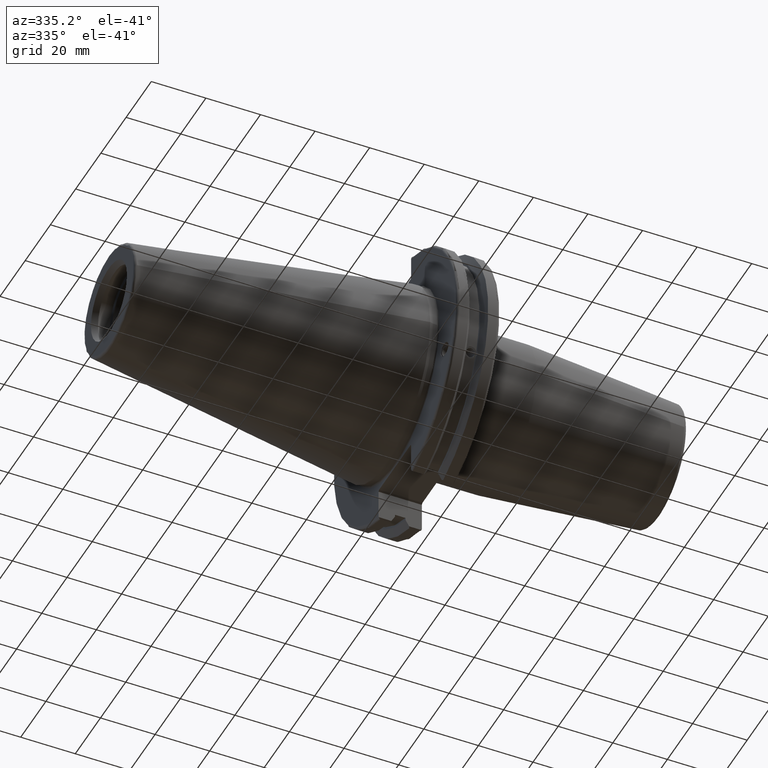
[diagram: clean part render]
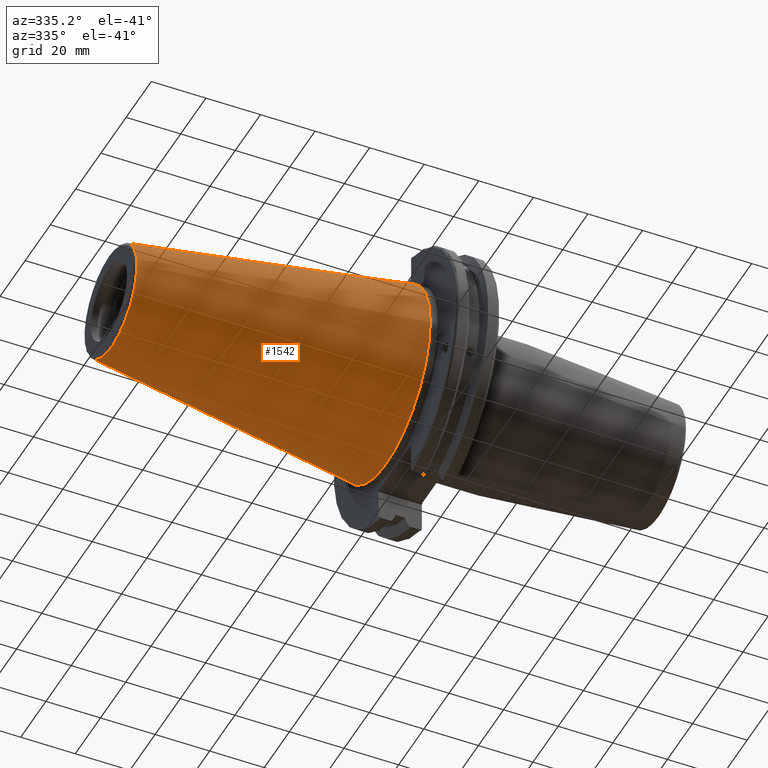
[diagram: same view with one face highlighted and labeled with its STEP entity id]
A machine part, auxiliary view. The second image highlights one B-rep face of the part: STEP entity #1542.
In plain terms, the highlighted conical surface has half-angle 8.297 deg.
Its self-contained STEP definition (entity closure, byte-faithful):
#77=CONICAL_SURFACE('',#1721,27.5166666666666,0.14481249823894);
#157=LINE('',#3062,#251);
#251=VECTOR('',#2096,27.5166666666666);
#421=FACE_OUTER_BOUND('',#529,.T.);
#529=EDGE_LOOP('',(#1342,#1343,#1344,#1345,#1346));
#619=CIRCLE('',#1715,20.233121911427);
#620=CIRCLE('',#1716,20.233121911427);
#624=CIRCLE('',#1722,34.925);
#775=VERTEX_POINT('',#3049);
#776=VERTEX_POINT('',#3050);
#779=VERTEX_POINT('',#3060);
#979=EDGE_CURVE('',#775,#776,#619,.T.);
#980=EDGE_CURVE('',#776,#775,#620,.T.);
#984=EDGE_CURVE('',#779,#779,#624,.T.);
#985=EDGE_CURVE('',#779,#776,#157,.T.);
#1342=ORIENTED_EDGE('',*,*,#984,.F.);
#1343=ORIENTED_EDGE('',*,*,#985,.T.);
#1344=ORIENTED_EDGE('',*,*,#979,.F.);
#1345=ORIENTED_EDGE('',*,*,#980,.F.);
#1346=ORIENTED_EDGE('',*,*,#985,.F.);
#1542=ADVANCED_FACE('',(#421),#77,.T.);
#1715=AXIS2_PLACEMENT_3D('',#3051,#2080,#2081);
#1716=AXIS2_PLACEMENT_3D('',#3052,#2082,#2083);
#1721=AXIS2_PLACEMENT_3D('',#3059,#2092,#2093);
#1722=AXIS2_PLACEMENT_3D('',#3061,#2094,#2095);
#2080=DIRECTION('center_axis',(-1.,0.,0.));
#2081=DIRECTION('ref_axis',(0.,-1.,3.06161699786838E-17));
#2082=DIRECTION('center_axis',(-1.,0.,0.));
#2083=DIRECTION('ref_axis',(0.,-1.,3.06161699786838E-17));
#2092=DIRECTION('center_axis',(1.,0.,0.));
#2093=DIRECTION('ref_axis',(0.,1.,0.));
#2094=DIRECTION('center_axis',(1.,0.,0.));
#2095=DIRECTION('ref_axis',(0.,0.,-1.));
#2096=DIRECTION('',(-0.989532981063281,0.144306893071729,1.76724974695192E-17));
#3049=CARTESIAN_POINT('',(-100.744306893072,-2.47784279855872E-15,20.233121911427));
#3050=CARTESIAN_POINT('',(-100.744306893072,-20.233121911427,-2.47784279855872E-15));
#3051=CARTESIAN_POINT('Origin',(-100.744306893072,0.,-3.09730349819841E-15));
#3052=CARTESIAN_POINT('Origin',(-100.744306893072,0.,-3.09730349819841E-15));
#3059=CARTESIAN_POINT('Origin',(-50.8,0.,0.));
#3060=CARTESIAN_POINT('',(-8.88178419700125E-15,-34.925,-4.27707894602213E-15));
#3061=CARTESIAN_POINT('Origin',(0.,0.,0.));
#3062=CARTESIAN_POINT('',(-50.8,-27.5166666666666,-3.3698197756538E-15));